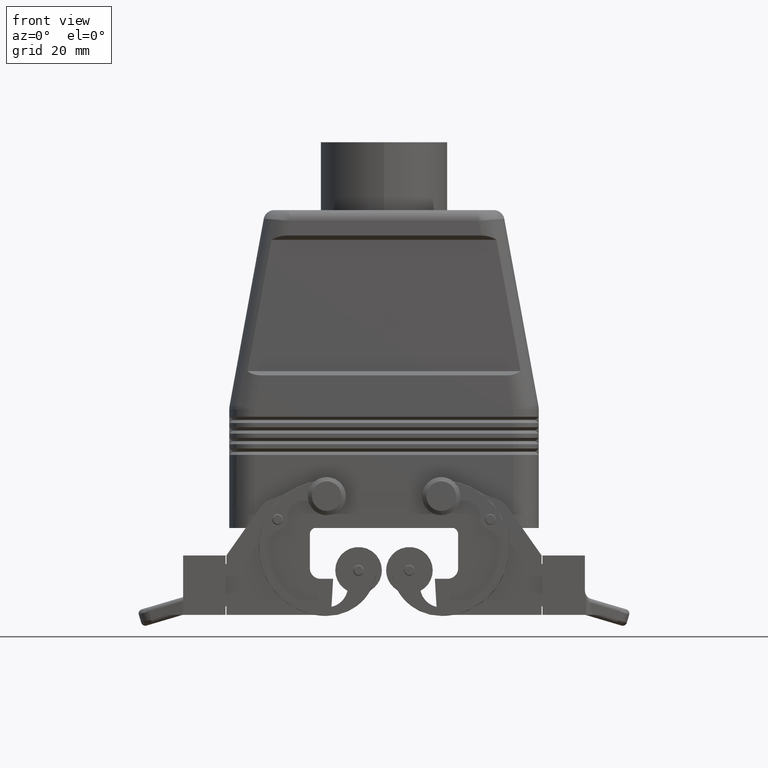
[diagram: clean part render]
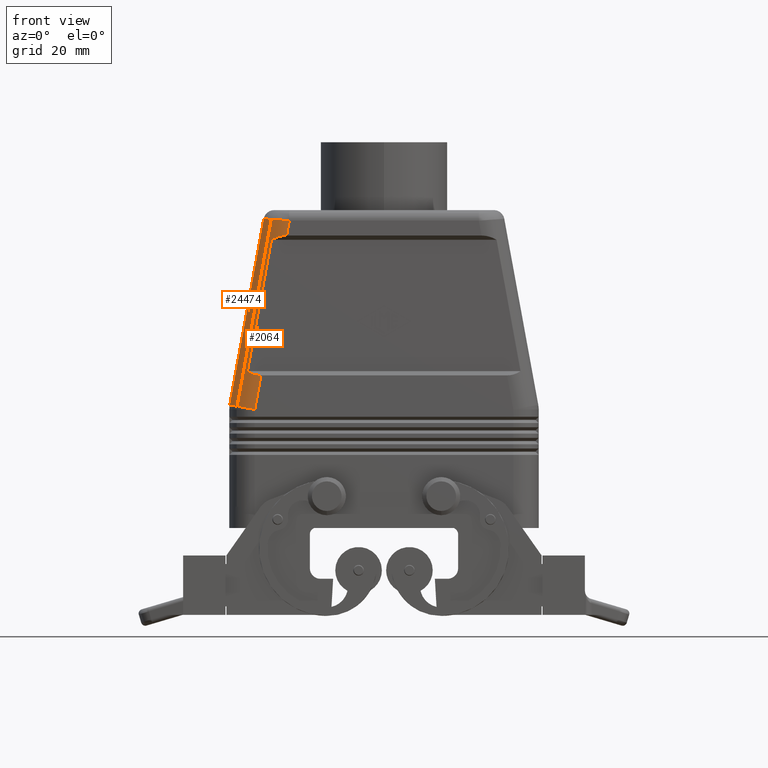
[diagram: same view with one multi-face feature highlighted, each face labeled with its STEP entity id]
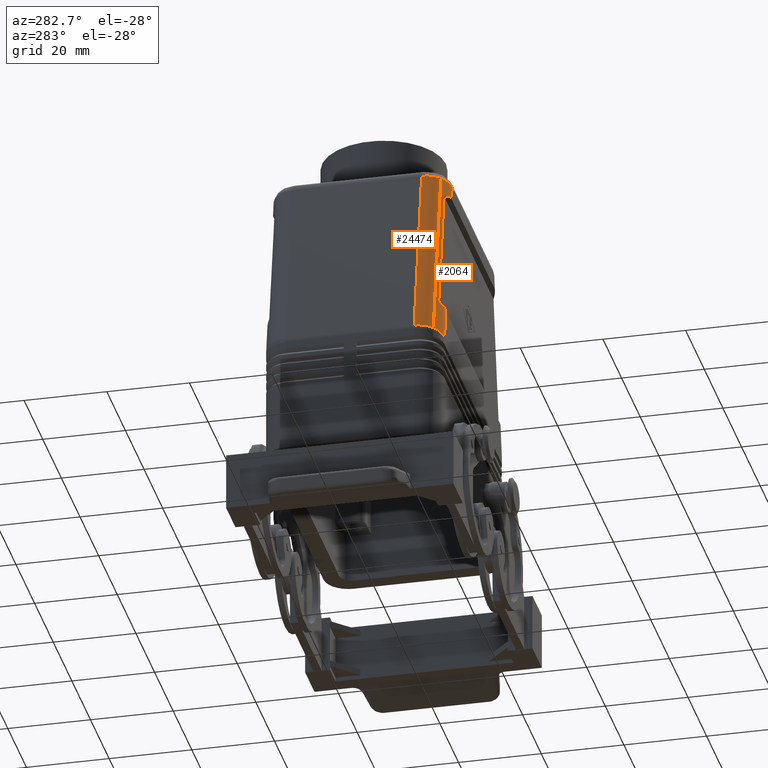
[diagram: same view with one multi-face feature highlighted, each face labeled with its STEP entity id]
A machine part, front view. The highlighted faces form ONE feature: a constant-radius fillet chain: 2 tangent blend faces with common blend radius 6 mm. The faces share edges in the B-rep.
A second angle (auxiliary view) of the same feature is appended — it is thin or edge-on in the first view.
Their STEP definitions:
[1] entity #24474 (Cylinder):
#1732=CARTESIAN_POINT('',(-36.402201386249772,-15.499999999999998,29.035015945810073));
#1733=VERTEX_POINT('',#1732);
#1996=CARTESIAN_POINT('',(-34.673486624145859,-19.742640687119280,28.719014322629786));
#1997=VERTEX_POINT('',#1996);
#1998=CARTESIAN_POINT('',(-26.612404914863880,-19.742640687119280,72.817873085172380));
#1999=VERTEX_POINT('',#1998);
#2000=CARTESIAN_POINT('',(-34.673486624145859,-19.742640687119280,28.719014322629786));
#2001=DIRECTION('',(0.179816171265674,0.0,0.983700231041629));
#2002=VECTOR('',#2001,44.829570402608141);
#2003=LINE('',#2000,#2002);
#2004=EDGE_CURVE('',#1997,#1999,#2003,.T.);
#24444=CARTESIAN_POINT('',(-25.155776057947669,-15.499999999999998,57.192167542384674));
#24445=DIRECTION('',(0.179816171265674,0.0,0.983700231041629));
#24446=DIRECTION('',(-0.695581104024309,-0.707106781186548,0.127149234068960));
#24447=AXIS2_PLACEMENT_3D('',#24444,#24445,#24446);
#24448=CYLINDRICAL_SURFACE('',#24447,6.000000000000001);
#24449=ORIENTED_EDGE('',*,*,#2004,.T.);
#24450=CARTESIAN_POINT('',(-28.374815190550638,-15.500000000000000,72.949540428164170));
#24451=VERTEX_POINT('',#24450);
#24452=CARTESIAN_POINT('',(-22.357570124835192,-15.499999999999998,72.499999999999986));
#24453=DIRECTION('',(0.074501058373926,1.232595E-032,0.997220934548190));
#24454=DIRECTION('',(-0.997220934548190,-7.359764E-016,0.074501058373926));
#24455=AXIS2_PLACEMENT_3D('',#24452,#24453,#24454);
#24456=ELLIPSE('',#24455,6.034013985518341,6.000000000000001);
#24457=EDGE_CURVE('',#24451,#1999,#24456,.T.);
#24458=ORIENTED_EDGE('',*,*,#24457,.F.);
#24459=CARTESIAN_POINT('',(-28.374815190550638,-15.500000000000000,72.949540428164170));
#24460=DIRECTION('',(-0.179816171265674,3.979100E-017,-0.983700231041629));
#24461=VECTOR('',#24460,44.642181730356526);
#24462=LINE('',#24459,#24461);
#24463=EDGE_CURVE('',#24451,#1733,#24462,.T.);
#24464=ORIENTED_EDGE('',*,*,#24463,.T.);
#24465=CARTESIAN_POINT('',(-30.500000000000000,-15.499999999999998,27.956118918216028));
#24466=DIRECTION('',(0.179816171265674,0.0,0.983700231041629));
#24467=DIRECTION('',(-0.983700231041629,0.0,0.179816171265674));
#24468=AXIS2_PLACEMENT_3D('',#24465,#24466,#24467);
#24469=CIRCLE('',#24468,6.0);
#24470=EDGE_CURVE('',#1733,#1997,#24469,.T.);
#24471=ORIENTED_EDGE('',*,*,#24470,.T.);
#24472=EDGE_LOOP('',(#24449,#24458,#24464,#24471));
#24473=FACE_OUTER_BOUND('',#24472,.T.);
#24474=ADVANCED_FACE('',(#24473),#24448,.T.);
[2] entity #2064 (Cylinder):
#1532=CARTESIAN_POINT('',(-22.357570124835195,-21.500000000000000,72.499999999999986));
#1533=VERTEX_POINT('',#1532);
#1991=CARTESIAN_POINT('',(-25.155776057947669,-15.499999999999998,57.192167542384674));
#1992=DIRECTION('',(0.179816171265674,0.0,0.983700231041629));
#1993=DIRECTION('',(-0.695581104024309,-0.707106781186548,0.127149234068960));
#1994=AXIS2_PLACEMENT_3D('',#1991,#1992,#1993);
#1995=CYLINDRICAL_SURFACE('',#1994,6.000000000000001);
#1996=CARTESIAN_POINT('',(-34.673486624145859,-19.742640687119280,28.719014322629786));
#1997=VERTEX_POINT('',#1996);
#1998=CARTESIAN_POINT('',(-26.612404914863880,-19.742640687119280,72.817873085172380));
#1999=VERTEX_POINT('',#1998);
#2000=CARTESIAN_POINT('',(-34.673486624145859,-19.742640687119280,28.719014322629786));
#2001=DIRECTION('',(0.179816171265674,0.0,0.983700231041629));
#2002=VECTOR('',#2001,44.829570402608141);
#2003=LINE('',#2000,#2002);
#2004=EDGE_CURVE('',#1997,#1999,#2003,.T.);
#2005=ORIENTED_EDGE('',*,*,#2004,.F.);
#2006=CARTESIAN_POINT('',(-30.500000000000000,-21.500000000000000,27.956118918216028));
#2007=VERTEX_POINT('',#2006);
#2008=CARTESIAN_POINT('',(-30.500000000000000,-15.499999999999998,27.956118918216028));
#2009=DIRECTION('',(0.179816171265674,0.0,0.983700231041629));
#2010=DIRECTION('',(-0.983700231041629,0.0,0.179816171265674));
#2011=AXIS2_PLACEMENT_3D('',#2008,#2009,#2010);
#2012=CIRCLE('',#2011,6.0);
#2013=EDGE_CURVE('',#1997,#2007,#2012,.T.);
#2014=ORIENTED_EDGE('',*,*,#2013,.T.);
#2015=CARTESIAN_POINT('',(-29.029613135587876,-21.500000000000000,36.0));
#2016=VERTEX_POINT('',#2015);
#2017=CARTESIAN_POINT('',(-30.500000000000000,-21.500000000000000,27.956118918216028));
#2018=DIRECTION('',(0.179816171265674,0.0,0.983700231041629));
#2019=VECTOR('',#2018,8.177167014860208);
#2020=LINE('',#2017,#2019);
#2021=EDGE_CURVE('',#2007,#2016,#2020,.T.);
#2022=ORIENTED_EDGE('',*,*,#2021,.T.);
#2023=CARTESIAN_POINT('',(-32.218398214725440,-20.500000000000004,37.0));
#2024=VERTEX_POINT('',#2023);
#2025=CARTESIAN_POINT('',(-27.932838942039485,-15.499999999999998,42.000000000000021));
#2026=DIRECTION('',(-4.163336E-017,0.707106781186549,-0.707106781186546));
#2027=DIRECTION('',(-0.250284329480719,-0.684601254167849,-0.684601254167852));
#2028=AXIS2_PLACEMENT_3D('',#2025,#2026,#2027);
#2029=ELLIPSE('',#2028,8.625881245604287,6.000000000000001);
#2030=EDGE_CURVE('',#2016,#2024,#2029,.T.);
#2031=ORIENTED_EDGE('',*,*,#2030,.T.);
#2032=CARTESIAN_POINT('',(-26.551731548058775,-20.500000000000004,68.0));
#2033=VERTEX_POINT('',#2032);
#2034=CARTESIAN_POINT('',(-32.218398214725440,-20.500000000000004,37.0));
#2035=DIRECTION('',(0.179816171265674,0.0,0.983700231041629));
#2036=VECTOR('',#2035,31.513665466129311);
#2037=LINE('',#2034,#2036);
#2038=EDGE_CURVE('',#2024,#2033,#2037,.T.);
#2039=ORIENTED_EDGE('',*,*,#2038,.T.);
#2040=CARTESIAN_POINT('',(-22.997355071071752,-21.500000000000000,69.0));
#2041=VERTEX_POINT('',#2040);
#2042=CARTESIAN_POINT('',(-24.094129264620143,-15.499999999999998,62.999999999999957));
#2043=DIRECTION('',(1.387779E-017,0.707106781186551,0.707106781186544));
#2044=DIRECTION('',(0.250284329480718,-0.684601254167847,0.684601254167853));
#2045=AXIS2_PLACEMENT_3D('',#2042,#2043,#2044);
#2046=ELLIPSE('',#2045,8.625881245604305,6.000000000000001);
#2047=EDGE_CURVE('',#2033,#2041,#2046,.T.);
#2048=ORIENTED_EDGE('',*,*,#2047,.T.);
#2049=CARTESIAN_POINT('',(-22.997355071071752,-21.500000000000000,69.0));
#2050=DIRECTION('',(0.179816171265674,0.0,0.983700231041629));
#2051=VECTOR('',#2050,3.557994488111359);
#2052=LINE('',#2049,#2051);
#2053=EDGE_CURVE('',#2041,#1533,#2052,.T.);
#2054=ORIENTED_EDGE('',*,*,#2053,.T.);
#2055=CARTESIAN_POINT('',(-22.357570124835192,-15.499999999999998,72.499999999999986));
#2056=DIRECTION('',(0.074501058373926,1.232595E-032,0.997220934548190));
#2057=DIRECTION('',(-0.997220934548190,-7.359764E-016,0.074501058373926));
#2058=AXIS2_PLACEMENT_3D('',#2055,#2056,#2057);
#2059=ELLIPSE('',#2058,6.034013985518341,6.000000000000001);
#2060=EDGE_CURVE('',#1999,#1533,#2059,.T.);
#2061=ORIENTED_EDGE('',*,*,#2060,.F.);
#2062=EDGE_LOOP('',(#2005,#2014,#2022,#2031,#2039,#2048,#2054,#2061));
#2063=FACE_OUTER_BOUND('',#2062,.T.);
#2064=ADVANCED_FACE('',(#2063),#1995,.T.);